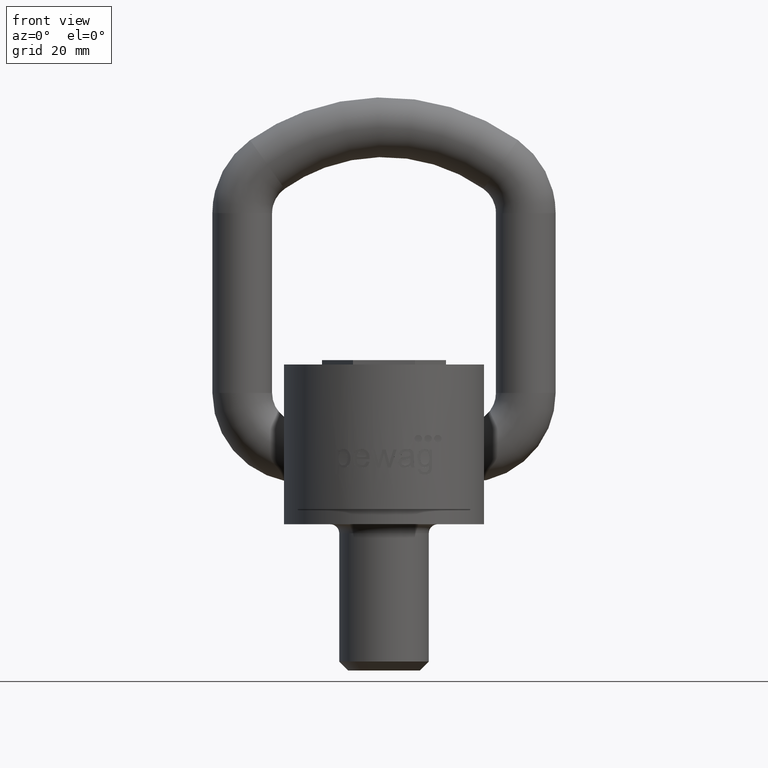
[diagram: clean part render]
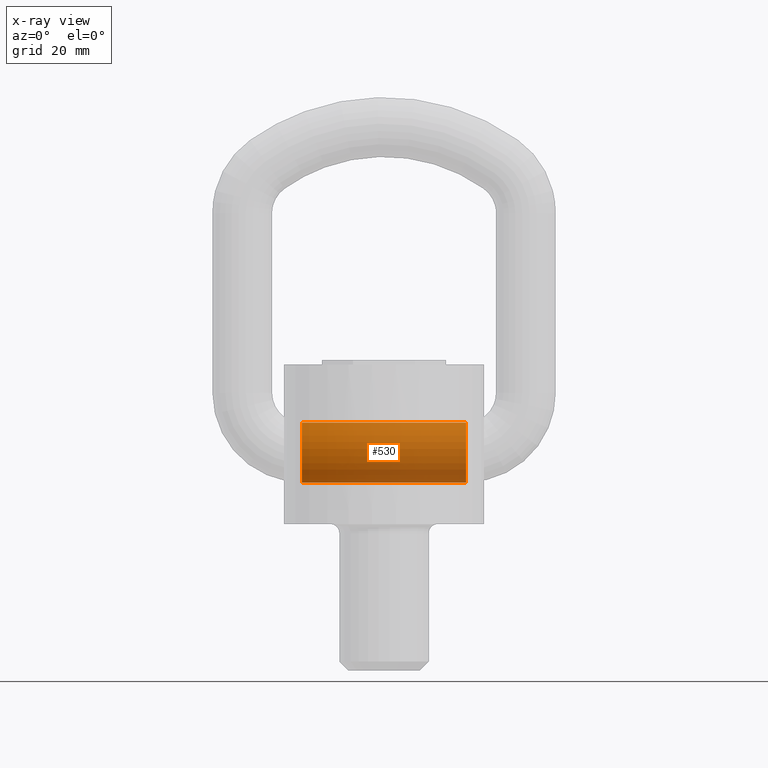
[diagram: x-ray — body ghosted, one internal face saturated and labeled with its STEP entity id]
A machine part, front view, then the same camera in x-ray: the body is ghosted and one INTERNAL B-rep face — a face not visible from any outside direction — is saturated and labeled: STEP entity #530.
In plain terms, the highlighted cylindrical surface (bore or boss wall) has radius 10 mm, axis along (1, 0, 0).
Its self-contained STEP definition (entity closure, byte-faithful):
#530=ADVANCED_FACE('',(#611,#612),#552,.T.);
#552=CYLINDRICAL_SURFACE('',#2581,10.);
#611=FACE_BOUND('',#775,.T.);
#612=FACE_BOUND('',#776,.T.);
#775=EDGE_LOOP('',(#1741));
#776=EDGE_LOOP('',(#1742));
#1125=CIRCLE('',#2577,10.);
#1127=CIRCLE('',#2580,10.);
#1741=ORIENTED_EDGE('',*,*,#2273,.T.);
#1742=ORIENTED_EDGE('',*,*,#2271,.F.);
#1960=VERTEX_POINT('',#5147);
#1962=VERTEX_POINT('',#5152);
#2271=EDGE_CURVE('',#1960,#1960,#1125,.T.);
#2273=EDGE_CURVE('',#1962,#1962,#1127,.T.);
#2577=AXIS2_PLACEMENT_3D('',#5146,#3016,#3017);
#2580=AXIS2_PLACEMENT_3D('',#5151,#3022,#3023);
#2581=AXIS2_PLACEMENT_3D('',#5153,#3024,#3025);
#3016=DIRECTION('',(1.,0.,-1.3379888182763E-15));
#3017=DIRECTION('',(-1.38777878078145E-15,0.,-1.));
#3022=DIRECTION('',(1.,0.,-1.3379888182763E-15));
#3023=DIRECTION('',(-1.38777878078145E-15,0.,-1.));
#3024=DIRECTION('',(1.,0.,0.));
#3025=DIRECTION('',(0.,0.,-1.));
#5146=CARTESIAN_POINT('',(27.5,33.,19.));
#5147=CARTESIAN_POINT('',(27.5,33.,9.));
#5151=CARTESIAN_POINT('',(-27.5,33.,19.));
#5152=CARTESIAN_POINT('',(-27.5,33.,9.));
#5153=CARTESIAN_POINT('',(-27.5,33.,19.));